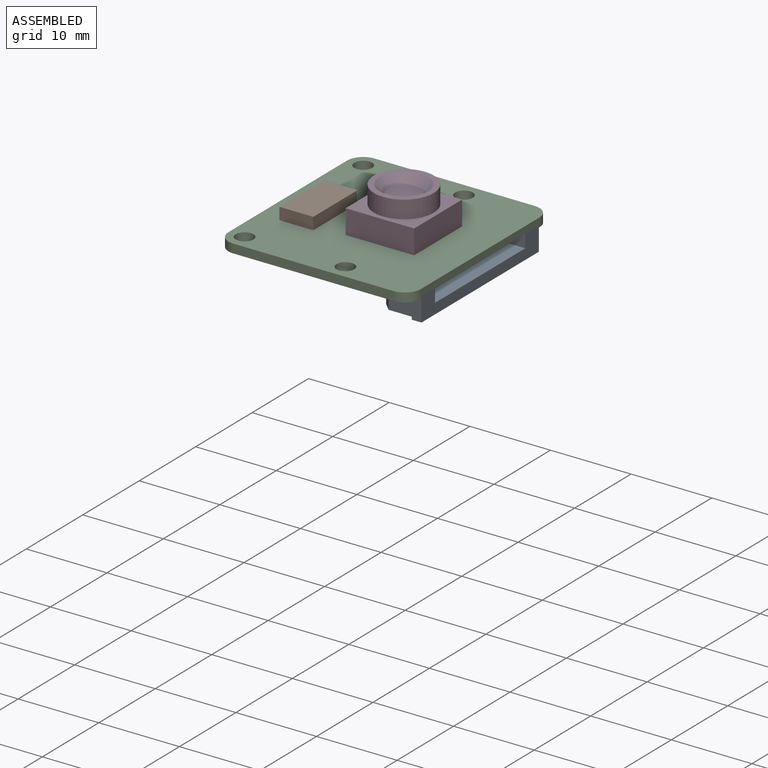
[diagram: assembled view]
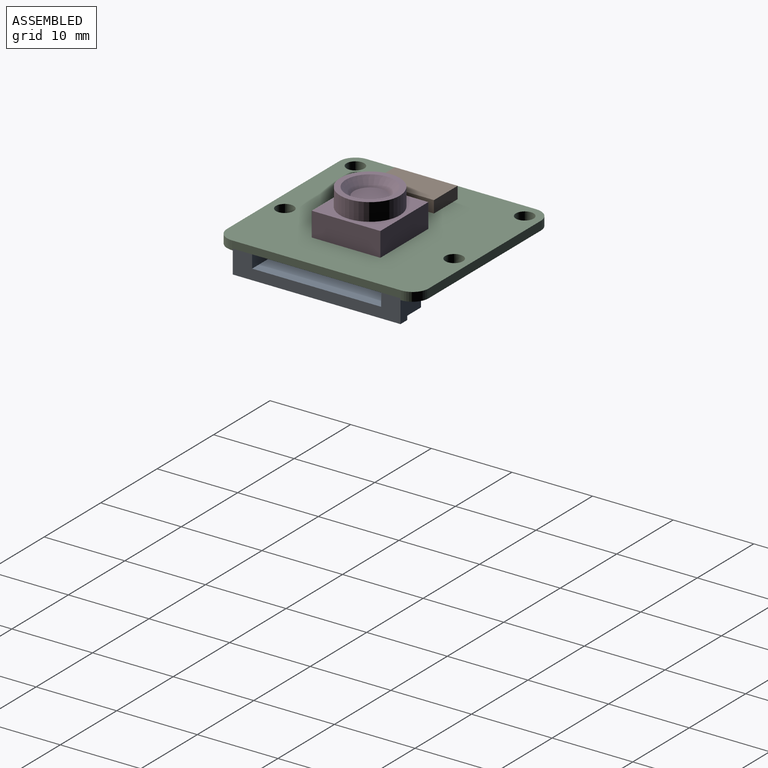
[diagram: assembled view, second angle]
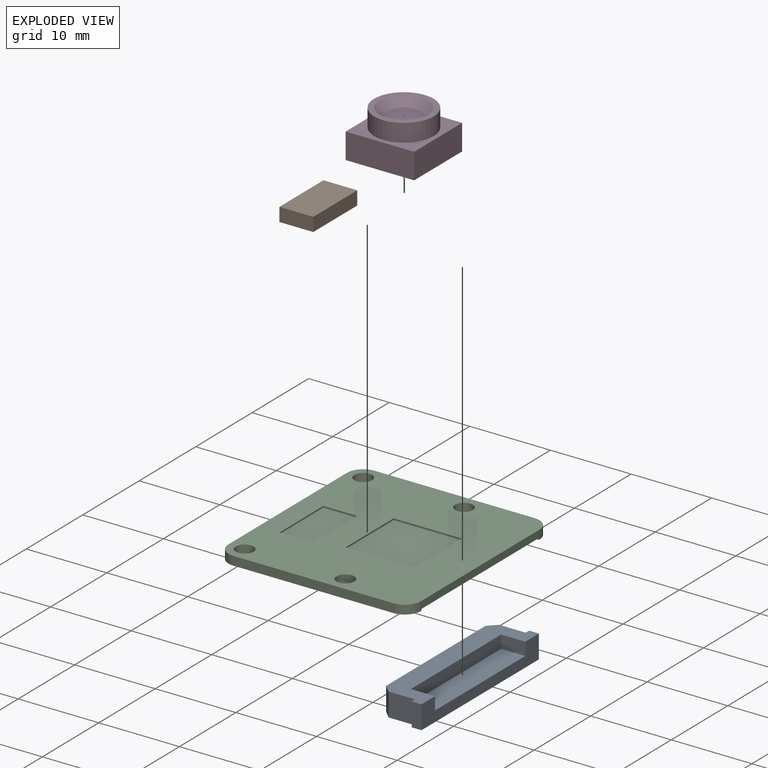
[diagram: exploded view]
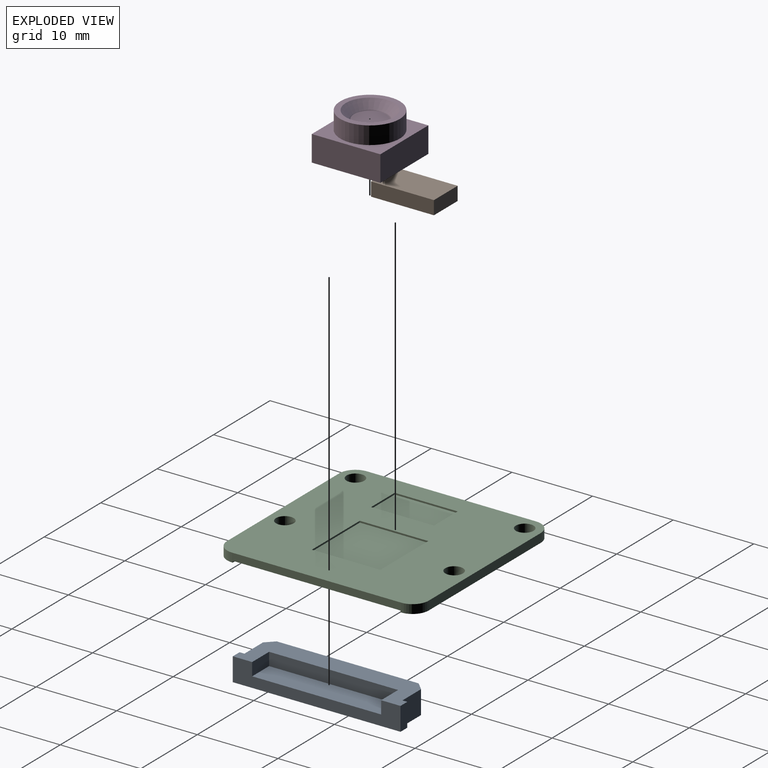
[diagram: exploded view, second angle]
ASSEMBLY  parts=4 mates=3
PART A: 16 faces, bbox 5.5x20.8x2.9 mm
  f0: plane 2.9x0.6mm, normal (-1,0,0), area 1.7mm2, adj f1,f7,f8,f9
  f1: plane 3.3x2.9mm, normal (0,1,0), area 9.6mm2, adj f0,f8,f9,f10
  f2: plane 17.6x2.9mm, normal (-1,0,0), area 51mm2, adj f8,f9,f10,f11
  f3: plane 3.3x2.9mm, normal (0,-1,0), area 9.6mm2, adj f4,f8,f9,f11
  f4: plane 2.9x0.6mm, normal (-1,0,0), area 1.7mm2, adj f3,f5,f8,f9
  f5: plane 2.9x1.2mm, normal (0,-1,0), area 3.5mm2, adj f4,f6,f8,f9
  f6: plane 20.8x2.9mm, normal (1,0,0), area 34.7mm2, adj f5,f7,f8,f9,f12,f13,f15
  f7: plane 2.9x1.2mm, normal (0,1,0), area 3.5mm2, adj f0,f6,f8,f9
  f8: plane 20.8x5.5mm, normal (0,0,1), area 108.2mm2, adj f0,f1,f2,f3,f4,f5,f6,f7
  f9: plane 20.8x5.5mm, normal (0,0,-1), area 60.2mm2, adj f0,f1,f2,f3,f4,f5,f6,f7
  f10: plane 2.9x1mm, normal (-0.71,0.71,0), area 4.1mm2, adj f1,f2,f8,f9
  f11: plane 2.9x1mm, normal (-0.71,-0.71,0), area 4.1mm2, adj f2,f3,f8,f9
  f12: plane 3x1.6mm, normal (0,-1,0), area 4.8mm2, adj f6,f9,f14,f15
  f13: plane 3x1.6mm, normal (0,1,0), area 4.8mm2, adj f6,f9,f14,f15
  f14: plane 16x1.6mm, normal (1,0,0), area 25.6mm2, adj f9,f12,f13,f15
  f15: plane 16x3mm, normal (0,0,-1), area 48mm2, adj f6,f12,f13,f14
PART B: 6 faces, bbox 4.2x7.8x1.7 mm
  f0: plane 7.8x1.7mm, normal (-1,0,0), area 13.3mm2, adj f1,f3,f4,f5
  f1: plane 4.2x1.7mm, normal (0,-1,0), area 7.1mm2, adj f0,f2,f4,f5
  f2: plane 7.8x1.7mm, normal (1,0,0), area 13.3mm2, adj f1,f3,f4,f5
  f3: plane 4.2x1.7mm, normal (0,1,0), area 7.1mm2, adj f0,f2,f4,f5
  f4: plane 7.8x4.2mm, normal (0,0,1), area 32.8mm2, adj f0,f1,f2,f3
  f5: plane 7.8x4.2mm, normal (0,0,-1), area 32.8mm2, adj f0,f1,f2,f3
PART C: 34 faces, bbox 23.9x25x1.1 mm
  f0: plane 25x23.86mm, normal (0,0,-1), area 469.7mm2, adj f1,f2,f3,f4,f5,f6,f7,f8
  f1: plane 19.86x1.1mm, normal (0,1,0), area 21.8mm2, adj f0,f2,f12,f13
  f2: cylinder r=2mm len=2mm, axis (0,0,-1), area 3.5mm2, adj f0,f1,f3,f13
  f3: plane 21x1.1mm, normal (-1,0,0), area 23.1mm2, adj f0,f2,f4,f13
  f4: cylinder r=2mm len=2mm, axis (0,0,-1), area 3.5mm2, adj f0,f3,f5,f13
  f5: plane 19.86x1.1mm, normal (0,-1,0), area 21.8mm2, adj f0,f4,f6,f13
  f6: cylinder r=2mm len=2mm, axis (0,0,-1), area 3.5mm2, adj f0,f5,f7,f13
  f7: plane 21x1.1mm, normal (1,0,0), area 18.9mm2, adj f0,f6,f12,f13,f25,f26,f31
  f8: cylinder r=1.1mm len=2.2mm, axis (0,0,-1), area 7.6mm2, adj f0,f13
  f9: cylinder r=1.1mm len=2.2mm, axis (0,0,-1), area 7.6mm2, adj f0,f13
  f10: cylinder r=1.1mm len=2.2mm, axis (0,0,-1), area 7.6mm2, adj f0,f13
  f11: cylinder r=1.1mm len=2.2mm, axis (0,0,-1), area 7.6mm2, adj f0,f13
  f12: cylinder r=2mm len=2mm, axis (0,0,-1), area 3.5mm2, adj f0,f1,f7,f13
  f13: plane 25x23.86mm, normal (0,0,1), area 472.9mm2, adj f1,f2,f3,f4,f5,f6,f7,f8
  f14: plane 7.8x0.2mm, normal (1,0,0), area 1.6mm2, adj f13,f15,f17,f18
  f15: plane 4.2x0.2mm, normal (0,1,0), area 0.8mm2, adj f13,f14,f16,f18
  f16: plane 7.8x0.2mm, normal (-1,0,0), area 1.6mm2, adj f13,f15,f17,f18
  f17: plane 4.2x0.2mm, normal (0,-1,0), area 0.8mm2, adj f13,f14,f16,f18
  f18: plane 7.8x4.2mm, normal (0,0,1), area 32.8mm2, adj f14,f15,f16,f17
  f19: plane 8.5x0.2mm, normal (1,0,0), area 1.7mm2, adj f13,f20,f22,f23
  f20: plane 8.5x0.2mm, normal (0,1,0), area 1.7mm2, adj f13,f19,f21,f23
  f21: plane 8.5x0.2mm, normal (-1,0,0), area 1.7mm2, adj f13,f20,f22,f23
  f22: plane 8.5x0.2mm, normal (0,-1,0), area 1.7mm2, adj f13,f19,f21,f23
  f23: plane 8.5x8.5mm, normal (0,0,1), area 72.2mm2, adj f19,f20,f21,f22
  f24: plane 0.6x0.2mm, normal (1,0,0), area 0.1mm2, adj f0,f25,f30,f31
  f25: plane 1.2x0.2mm, normal (0,-1,0), area 0.2mm2, adj f0,f7,f24,f31
  f26: plane 1.2x0.2mm, normal (0,1,0), area 0.2mm2, adj f0,f7,f27,f31
  f27: plane 0.6x0.2mm, normal (1,0,0), area 0.1mm2, adj f0,f26,f28,f31
  f28: plane 3.3x0.2mm, normal (0,1,0), area 0.7mm2, adj f0,f27,f31,f33
  f29: plane 17.6x0.2mm, normal (1,0,0), area 3.5mm2, adj f0,f31,f32,f33
  f30: plane 3.3x0.2mm, normal (0,-1,0), area 0.7mm2, adj f0,f24,f31,f32
  f31: plane 20.8x5.5mm, normal (0,0,-1), area 108.2mm2, adj f7,f24,f25,f26,f27,f28,f29,f30
  f32: plane 1x1mm, normal (0.71,-0.71,0), area 0.3mm2, adj f0,f29,f30,f31
  f33: plane 1x1mm, normal (0.71,0.71,0), area 0.3mm2, adj f0,f28,f29,f31
PART D: 10 faces, bbox 8.5x8.5x5.4 mm
  f0: plane 8.5x3.2mm, normal (-1,0,0), area 27.2mm2, adj f1,f3,f4,f5
  f1: plane 8.5x3.2mm, normal (0,-1,0), area 27.2mm2, adj f0,f2,f4,f5
  f2: plane 8.5x3.2mm, normal (1,0,0), area 27.2mm2, adj f1,f3,f4,f5
  f3: plane 8.5x3.2mm, normal (0,1,0), area 27.2mm2, adj f0,f2,f4,f5
  f4: plane 8.5x8.5mm, normal (0,0,1), area 29.2mm2, adj f0,f1,f2,f3,f6
  f5: plane 8.5x8.5mm, normal (0,0,-1), area 72.3mm2, adj f0,f1,f2,f3
  f6: cylinder r=3.7mm len=7.4mm, axis (0,0,-1), area 51.1mm2, adj f4,f7
  f7: plane 7.4x7.4mm, normal (0,0,1), area 14.7mm2, adj f6,f9
  f8: plane 4x4mm, normal (0,0,1), area 12.6mm2, adj f9
  f9: cone r=2mm half-angle=45deg, axis (0,0,1), area 22.2mm2, adj f7,f8
PLACE A rot(axis=(1,0,0),180deg) t=(13.05,17.19,4.1)mm
PLACE B t=(-2.71,1.59,4.8)mm
PLACE C t=(-5.31,-5.71,3.9)mm fixed
PLACE D t=(4.84,2.54,4.8)mm
MATE fastened C.f18 <-> B.f5  axis (0,0,1) through (-0.61,5.49,4.8)mm
MATE fastened D.f5 <-> C.f23  axis (0,0,-1) through (9.09,2.54,4.8)mm
MATE fastened A.f9 <-> C.f31  axis (0,0,1) through (13.05,6.79,4.1)mm
